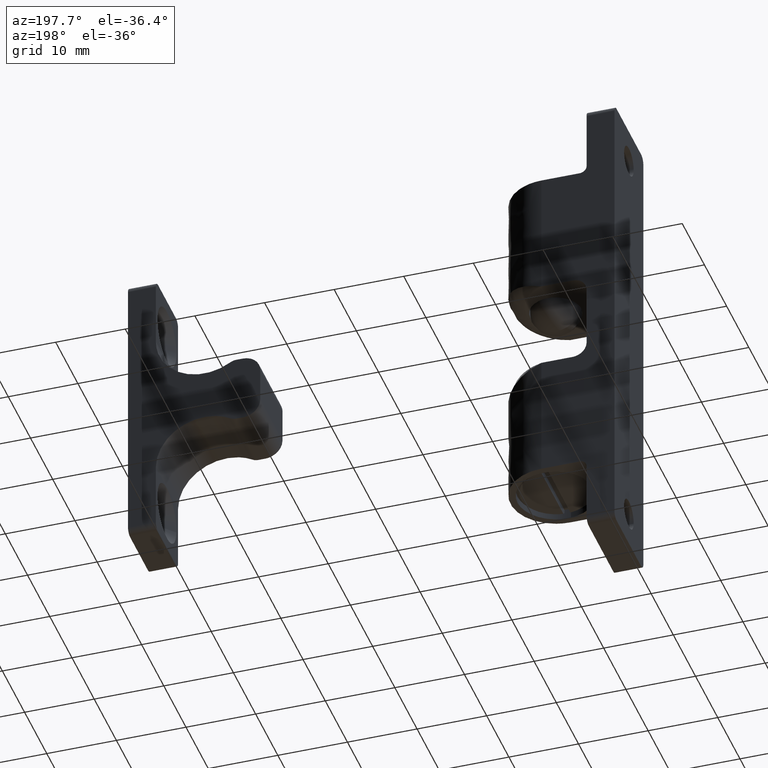
[diagram: clean part render]
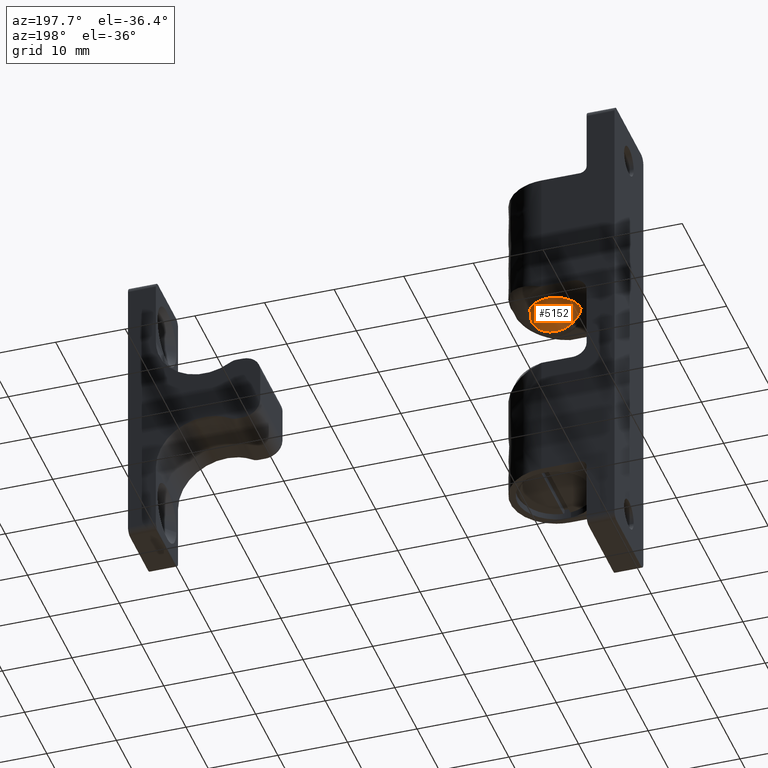
[diagram: same view with one face highlighted and labeled with its STEP entity id]
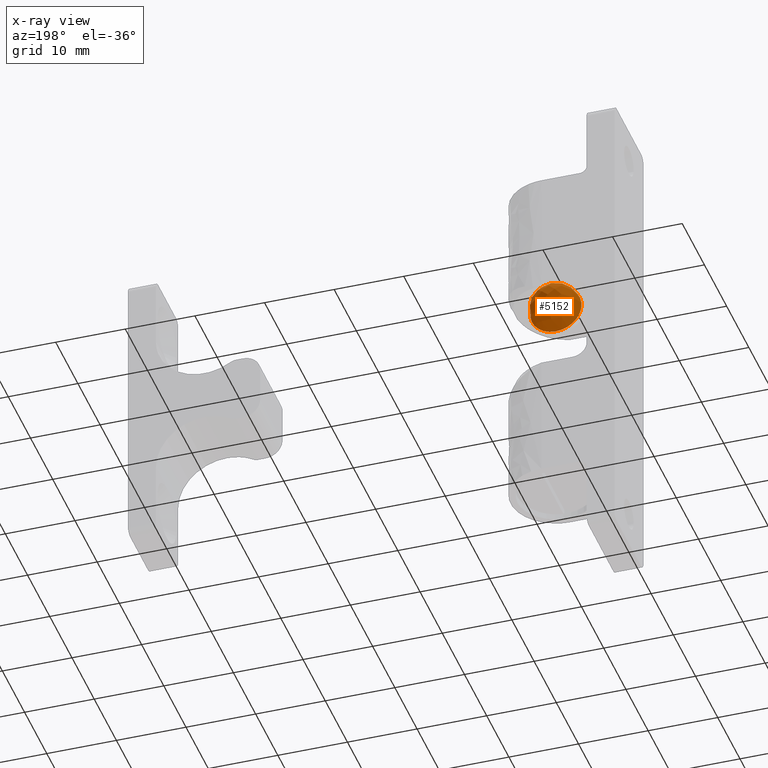
[diagram: x-ray of the same camera — body ghosted, the highlighted face saturated]
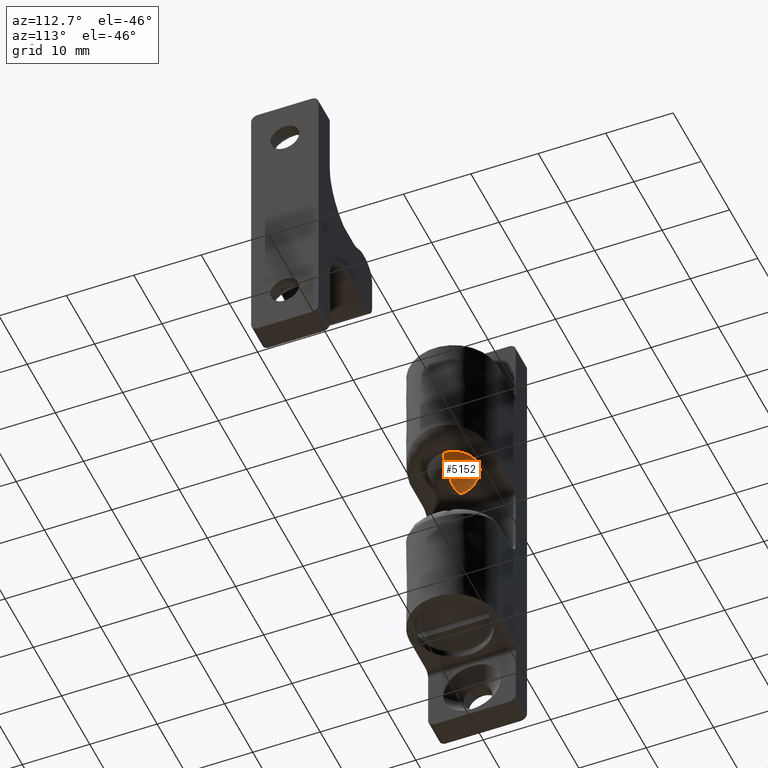
[diagram: same view with one face highlighted and labeled with its STEP entity id]
A machine part, auxiliary view. The second image highlights one B-rep face of the part: STEP entity #5152.
The next image is the same camera in x-ray: the body ghosted, the highlighted face saturated — about 0% of this face is hidden behind the body in this view.
A second angle (auxiliary view) of the same face is appended — the face is thin or edge-on in the first view.
In plain terms, the highlighted face is a freeform B-spline surface patch.
Its self-contained STEP definition (entity closure, byte-faithful):
#5055=CARTESIAN_POINT('',(10.500000000000000,0.0,3.400000000000000));
#5056=VERTEX_POINT('',#5055);
#5057=CARTESIAN_POINT('',(10.500000000000000,0.0,10.800000000000001));
#5058=VERTEX_POINT('',#5057);
#5059=CARTESIAN_POINT('',(10.500000000000000,0.0,3.400000000000000));
#5060=CARTESIAN_POINT('',(10.757287197401009,0.0,3.399960841064689));
#5061=CARTESIAN_POINT('',(11.271869649694819,0.0,3.453890015303411));
#5062=CARTESIAN_POINT('',(12.039263788529100,0.0,3.702124776581568));
#5063=CARTESIAN_POINT('',(12.655822274112920,0.0,4.066573944860807));
#5064=CARTESIAN_POINT('',(13.169952316105549,0.0,4.515667991251490));
#5065=CARTESIAN_POINT('',(13.636345145602590,0.0,5.076734038320069));
#5066=CARTESIAN_POINT('',(14.020926261159749,0.0,5.840724061403783));
#5067=CARTESIAN_POINT('',(14.199436729426330,0.0,6.659593527522329));
#5068=CARTESIAN_POINT('',(14.207788465682871,0.0,7.343133475921195));
#5069=CARTESIAN_POINT('',(14.109852107347240,0.0,8.003670232804097));
#5070=CARTESIAN_POINT('',(13.896832697149950,0.0,8.622847760233229));
#5071=CARTESIAN_POINT('',(13.503481253652520,0.0,9.307466763664875));
#5072=CARTESIAN_POINT('',(13.035252491645441,0.0,9.830505389332309));
#5073=CARTESIAN_POINT('',(12.425701390026241,0.0,10.282496882121130));
#5074=CARTESIAN_POINT('',(11.839429414750080,0.0,10.573139963384280));
#5075=CARTESIAN_POINT('',(11.165933844205460,0.0,10.759472569466100));
#5076=CARTESIAN_POINT('',(10.727023992261859,0.0,10.800022763352150));
#5077=CARTESIAN_POINT('',(10.500000000000000,0.0,10.800000000000001));
#5078=B_SPLINE_CURVE_WITH_KNOTS('',3,(#5059,#5060,#5061,#5062,#5063,#5064,#5065,#5066,#5067,#5068,#5069,#5070,#5071,#5072,#5073,#5074,#5075,#5076,#5077),.UNSPECIFIED.,.F.,.U.,(4,1,1,1,1,1,1,1,1,1,1,1,1,1,1,1,4),(0.000000230956768,0.771858892168471,1.543801866047685,2.406514623316497,2.905993071574629,3.587099507976934,4.586053766990088,5.448740195017780,6.084372082407498,6.629285562494761,7.446580978262286,8.036877561402804,8.990417043306834,9.535302727382895,10.307197382464540,10.942893423344829,11.623965753346759),.UNSPECIFIED.);
#5079=EDGE_CURVE('',#5056,#5058,#5078,.T.);
#5081=CARTESIAN_POINT('',(10.500000000000000,0.0,3.400000000000000));
#5082=CARTESIAN_POINT('',(10.076173365259050,0.0,3.399690082670651));
#5083=CARTESIAN_POINT('',(9.334762872444369,0.0,3.528877186052591));
#5084=CARTESIAN_POINT('',(8.424270307791501,0.0,3.994225993421111));
#5085=CARTESIAN_POINT('',(7.709337469998097,0.0,4.610913913059715));
#5086=CARTESIAN_POINT('',(7.185789300689155,0.0,5.363987140590693));
#5087=CARTESIAN_POINT('',(6.909147706623628,0.0,6.122786120659232));
#5088=CARTESIAN_POINT('',(6.799116503015998,0.0,6.781110342896488));
#5089=CARTESIAN_POINT('',(6.791243469040208,0.0,7.419076131122565));
#5090=CARTESIAN_POINT('',(6.928580585336372,0.0,8.182936822981782));
#5091=CARTESIAN_POINT('',(7.276997013931447,0.0,8.995922935298184));
#5092=CARTESIAN_POINT('',(7.798710355277116,0.0,9.672865148851690));
#5093=CARTESIAN_POINT('',(8.394950333648703,0.0,10.168273100278929));
#5094=CARTESIAN_POINT('',(8.912514071721514,0.0,10.457265939636390));
#5095=CARTESIAN_POINT('',(9.607129729478711,0.0,10.720351988442900));
#5096=CARTESIAN_POINT('',(10.121591993414221,0.0,10.800211794860340));
#5097=CARTESIAN_POINT('',(10.500000000000000,0.0,10.800000000000001));
#5098=B_SPLINE_CURVE_WITH_KNOTS('',3,(#5081,#5082,#5083,#5084,#5085,#5086,#5087,#5088,#5089,#5090,#5091,#5092,#5093,#5094,#5095,#5096,#5097),.UNSPECIFIED.,.F.,.U.,(4,1,1,1,1,1,1,1,1,1,1,1,1,1,4),(0.000000230951258,1.271363864524821,2.224895329705095,3.042213964897222,4.086558487166665,4.949272804216926,5.448740195017275,6.084372082407261,6.856285201302959,7.764440067190212,8.717974987337284,9.399081368900458,10.080185361609839,10.488835435247591,11.623965753346731),.UNSPECIFIED.);
#5099=EDGE_CURVE('',#5056,#5058,#5098,.T.);
#5104=CARTESIAN_POINT('',(12.925370461393474,-1.387500000000000,9.525370461393475));
#5105=CARTESIAN_POINT('',(13.428749236399669,-0.907547169811321,9.296561927299756));
#5106=CARTESIAN_POINT('',(14.195802607837676,-0.176190476190476,8.023950651959419));
#5107=CARTESIAN_POINT('',(14.195802607837676,-0.176190476190476,6.176049348040581));
#5108=CARTESIAN_POINT('',(13.428749236399669,-0.907547169811321,4.903438072700250));
#5109=CARTESIAN_POINT('',(12.925370461393474,-1.387500000000000,4.674629538606525));
#5110=CARTESIAN_POINT('',(12.696561927299756,-0.907547169811321,10.028749236399669));
#5111=CARTESIAN_POINT('',(13.271851955878256,-0.176190476190476,9.871851955878256));
#5112=CARTESIAN_POINT('',(14.255412327318929,1.074193548387096,8.351804109106309));
#5113=CARTESIAN_POINT('',(14.255412327318929,1.074193548387096,5.848195890893691));
#5114=CARTESIAN_POINT('',(13.271851955878256,-0.176190476190476,4.328148044121743));
#5115=CARTESIAN_POINT('',(12.696561927299756,-0.907547169811321,4.171250763600336));
#5116=CARTESIAN_POINT('',(11.423950651959419,-0.176190476190476,10.795802607837675));
#5117=CARTESIAN_POINT('',(11.751804109106308,1.074193548387096,10.855412327318930));
#5118=CARTESIAN_POINT('',(12.440296369114780,3.699999999999999,9.040296369114781));
#5119=CARTESIAN_POINT('',(12.440296369114780,3.699999999999999,5.159703630885220));
#5120=CARTESIAN_POINT('',(11.751804109106308,1.074193548387096,3.344587672681072));
#5121=CARTESIAN_POINT('',(11.423950651959419,-0.176190476190476,3.404197392162325));
#5122=CARTESIAN_POINT('',(9.576049348040581,-0.176190476190476,10.795802607837675));
#5123=CARTESIAN_POINT('',(9.248195890893690,1.074193548387096,10.855412327318930));
#5124=CARTESIAN_POINT('',(8.559703630885220,3.699999999999999,9.040296369114781));
#5125=CARTESIAN_POINT('',(8.559703630885220,3.699999999999999,5.159703630885220));
#5126=CARTESIAN_POINT('',(9.248195890893690,1.074193548387096,3.344587672681072));
#5127=CARTESIAN_POINT('',(9.576049348040581,-0.176190476190476,3.404197392162325));
#5128=CARTESIAN_POINT('',(8.303438072700249,-0.907547169811321,10.028749236399669));
#5129=CARTESIAN_POINT('',(7.728148044121744,-0.176190476190476,9.871851955878256));
#5130=CARTESIAN_POINT('',(6.744587672681071,1.074193548387096,8.351804109106309));
#5131=CARTESIAN_POINT('',(6.744587672681071,1.074193548387096,5.848195890893691));
#5132=CARTESIAN_POINT('',(7.728148044121744,-0.176190476190476,4.328148044121743));
#5133=CARTESIAN_POINT('',(8.303438072700249,-0.907547169811321,4.171250763600336));
#5134=CARTESIAN_POINT('',(8.074629538606528,-1.387500000000000,9.525370461393475));
#5135=CARTESIAN_POINT('',(7.571250763600332,-0.907547169811321,9.296561927299756));
#5136=CARTESIAN_POINT('',(6.804197392162323,-0.176190476190476,8.023950651959419));
#5137=CARTESIAN_POINT('',(6.804197392162323,-0.176190476190476,6.176049348040581));
#5138=CARTESIAN_POINT('',(7.571250763600332,-0.907547169811321,4.903438072700250));
#5139=CARTESIAN_POINT('',(8.074629538606528,-1.387500000000000,4.674629538606525));
#5147=(BOUNDED_SURFACE()B_SPLINE_SURFACE(2,2,((#5104,#5110,#5116,#5122,#5128,#5134),(#5105,#5111,#5117,#5123,#5129,#5135),(#5106,#5112,#5118,#5124,#5130,#5136),(#5107,#5113,#5119,#5125,#5131,#5137),(#5108,#5114,#5120,#5126,#5132,#5138),(#5109,#5115,#5121,#5127,#5133,#5139)),.UNSPECIFIED.,.F.,.F.,.U.)B_SPLINE_SURFACE_WITH_KNOTS((3,1,1,1,3),(3,1,1,1,3),(0.0,3.411510099542473,6.823020199084946,10.234530298627419,13.646040398169889),(0.0,3.411510099542471,6.823020199084942,10.234530298627410,13.646040398169880),.UNSPECIFIED.)GEOMETRIC_REPRESENTATION_ITEM()RATIONAL_B_SPLINE_SURFACE(((3.200000000000000,2.650000000000000,2.100000000000000,2.100000000000000,2.650000000000000,3.200000000000000),(2.650000000000000,2.100000000000000,1.550000000000000,1.550000000000000,2.100000000000000,2.650000000000000),(2.100000000000000,1.550000000000000,1.0,1.0,1.550000000000000,2.100000000000000),(2.100000000000000,1.550000000000000,1.0,1.0,1.550000000000000,2.100000000000000),(2.650000000000000,2.100000000000000,1.550000000000000,1.550000000000000,2.100000000000000,2.650000000000000),(3.200000000000000,2.650000000000000,2.100000000000000,2.100000000000000,2.650000000000000,3.200000000000000)))REPRESENTATION_ITEM('')SURFACE());
#5148=ORIENTED_EDGE('',*,*,#5099,.T.);
#5149=ORIENTED_EDGE('',*,*,#5079,.F.);
#5150=EDGE_LOOP('',(#5148,#5149));
#5151=FACE_OUTER_BOUND('',#5150,.T.);
#5152=ADVANCED_FACE('',(#5151),#5147,.T.);